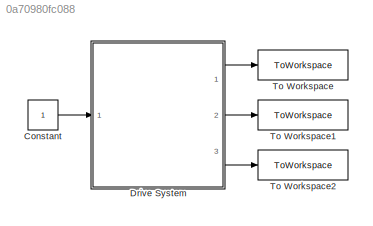
MODEL slx_0a70980fc088
KIND model
CONFIG AbsTol = auto
CONFIG EnableMultiTasking = off
CONFIG FixedStep = auto
CONFIG MaxStep = auto
CONFIG MinStep = auto
CONFIG RelTol = 1e-3
CONFIG SampleTimeConstraint = Unconstrained
CONFIG Solver = VariableStepAuto
CONFIG SolverName = VariableStepAuto
CONFIG StartTime = 0.0
CONFIG StopTime = 10.0
BLOCK [Constant] Constant
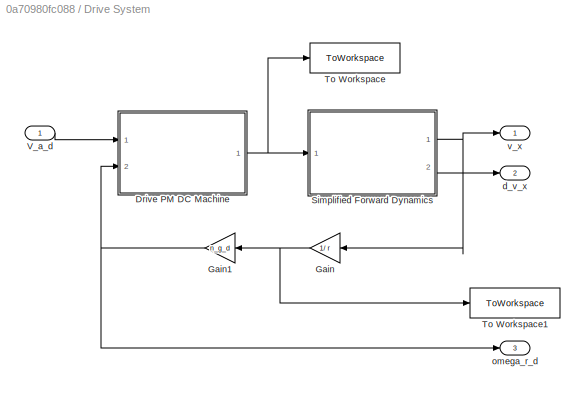
BLOCK [SubSystem] Drive System
  Ports = [1, 3]
  RequestExecContextInheritance = off
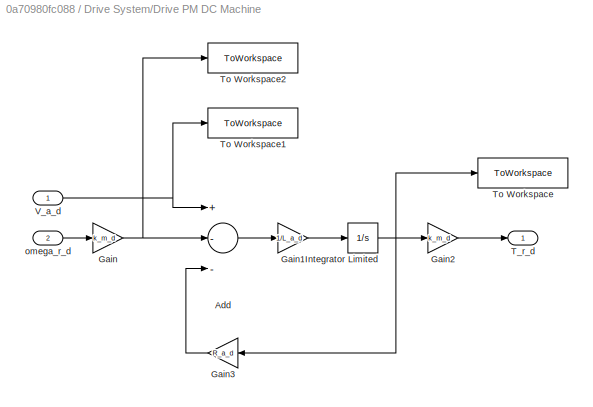
BLOCK [SubSystem] Drive System/Drive PM DC Machine
  Ports = [2, 1]
  RequestExecContextInheritance = off
BLOCK [Sum] Drive System/Drive PM DC Machine/Add
  InputSameDT = off
  Inputs = +--
  OutDataTypeStr = Inherit: Inherit via internal rule
  Ports = [3, 1]
  SaturateOnIntegerOverflow = off
BLOCK [Gain] Drive System/Drive PM DC Machine/Gain
  AttributesFormatString = %<Gain>
  Gain = k_m_d
  OutDataTypeStr = Inherit: Inherit via internal rule
  ParamDataTypeStr = Inherit: Inherit via internal rule
  SaturateOnIntegerOverflow = off
BLOCK [Gain] Drive System/Drive PM DC Machine/Gain1
  AttributesFormatString = %<Gain>
  Gain = 1/L_a_d
  OutDataTypeStr = Inherit: Inherit via internal rule
  ParamDataTypeStr = Inherit: Inherit via internal rule
  SaturateOnIntegerOverflow = off
BLOCK [Gain] Drive System/Drive PM DC Machine/Gain2
  AttributesFormatString = %<Gain>
  Gain = k_m_d
  OutDataTypeStr = Inherit: Inherit via internal rule
  ParamDataTypeStr = Inherit: Inherit via internal rule
  SaturateOnIntegerOverflow = off
BLOCK [Gain] Drive System/Drive PM DC Machine/Gain3
  AttributesFormatString = %<Gain>
  Gain = R_a_d
  OutDataTypeStr = Inherit: Inherit via internal rule
  ParamDataTypeStr = Inherit: Inherit via internal rule
  SaturateOnIntegerOverflow = off
BLOCK [Integrator] Drive System/Drive PM DC Machine/Integrator Limited
  LimitOutput = on
  LowerSaturationLimit = -i_a_max
  Ports = [1, 1]
  UpperSaturationLimit = i_a_max
BLOCK [Outport] Drive System/Drive PM DC Machine/T_r_d
  IconDisplay = Port number
  VectorParamsAs1DForOutWhenUnconnected = off
BLOCK [ToWorkspace] Drive System/Drive PM DC Machine/To Workspace
  FixptAsFi = on
  MaxDataPoints = inf
  Ports = [1]
  SampleTime = -1
  VariableName = i_a_d
BLOCK [ToWorkspace] Drive System/Drive PM DC Machine/To Workspace1
  FixptAsFi = on
  MaxDataPoints = inf
  Ports = [1]
  SampleTime = -1
  VariableName = V_a_d
BLOCK [ToWorkspace] Drive System/Drive PM DC Machine/To Workspace2
  FixptAsFi = on
  MaxDataPoints = inf
  Ports = [1]
  SampleTime = -1
  VariableName = E_a_d
BLOCK [Inport] Drive System/Drive PM DC Machine/V_a_d
  IconDisplay = Port number
BLOCK [Inport] Drive System/Drive PM DC Machine/omega_r_d
  IconDisplay = Port number
  Port = 2
BLOCK [Gain] Drive System/Gain
  AttributesFormatString = %<Gain>
  Gain = 1/ r
  OutDataTypeStr = Inherit: Inherit via internal rule
  ParamDataTypeStr = Inherit: Inherit via internal rule
  SaturateOnIntegerOverflow = off
BLOCK [Gain] Drive System/Gain1
  AttributesFormatString = %<Gain>
  Gain = n_g_d
  OutDataTypeStr = Inherit: Inherit via internal rule
  ParamDataTypeStr = Inherit: Inherit via internal rule
  SaturateOnIntegerOverflow = off
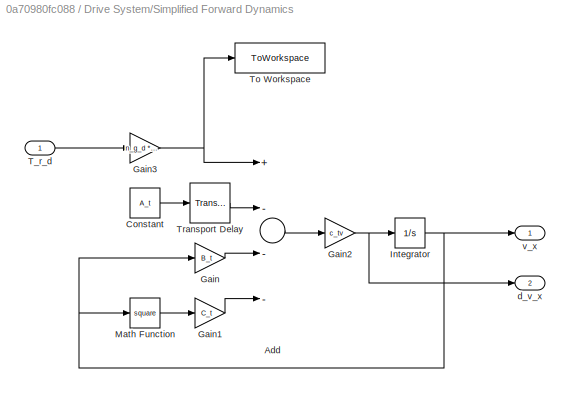
BLOCK [SubSystem] Drive System/Simplified Forward Dynamics
  Ports = [1, 2]
  RequestExecContextInheritance = off
BLOCK [Sum] Drive System/Simplified Forward Dynamics/Add
  InputSameDT = off
  Inputs = +---
  OutDataTypeStr = Inherit: Inherit via internal rule
  Ports = [4, 1]
  SaturateOnIntegerOverflow = off
BLOCK [Constant] Drive System/Simplified Forward Dynamics/Constant
  Value = A_t
BLOCK [Gain] Drive System/Simplified Forward Dynamics/Gain
  Gain = B_t
  OutDataTypeStr = Inherit: Inherit via internal rule
  ParamDataTypeStr = Inherit: Inherit via internal rule
  SaturateOnIntegerOverflow = off
BLOCK [Gain] Drive System/Simplified Forward Dynamics/Gain1
  Gain = C_t
  OutDataTypeStr = Inherit: Inherit via internal rule
  ParamDataTypeStr = Inherit: Inherit via internal rule
  SaturateOnIntegerOverflow = off
BLOCK [Gain] Drive System/Simplified Forward Dynamics/Gain2
  Gain = c_tv
  OutDataTypeStr = Inherit: Inherit via internal rule
  ParamDataTypeStr = Inherit: Inherit via internal rule
  SaturateOnIntegerOverflow = off
BLOCK [Gain] Drive System/Simplified Forward Dynamics/Gain3
  AttributesFormatString = %<Gain>
  Gain = n_g_d * eta_g_d
  OutDataTypeStr = Inherit: Inherit via internal rule
  ParamDataTypeStr = Inherit: Inherit via internal rule
  SaturateOnIntegerOverflow = off
BLOCK [Integrator] Drive System/Simplified Forward Dynamics/Integrator
  Ports = [1, 1]
BLOCK [Math] Drive System/Simplified Forward Dynamics/Math Function
  Operator = square
  Ports = [1, 1]
BLOCK [Inport] Drive System/Simplified Forward Dynamics/T_r_d
  IconDisplay = Port number
BLOCK [ToWorkspace] Drive System/Simplified Forward Dynamics/To Workspace
  FixptAsFi = on
  MaxDataPoints = inf
  Ports = [1]
  SampleTime = -1
  VariableName = T_axle_d
BLOCK [TransportDelay] Drive System/Simplified Forward Dynamics/Transport Delay
  BufferSize = 4096
  DelayTime = delay_theta
  Ports = [1, 1]
BLOCK [Outport] Drive System/Simplified Forward Dynamics/d_v_x
  IconDisplay = Port number
  Port = 2
  VectorParamsAs1DForOutWhenUnconnected = off
BLOCK [Outport] Drive System/Simplified Forward Dynamics/v_x
  IconDisplay = Port number
  VectorParamsAs1DForOutWhenUnconnected = off
BLOCK [ToWorkspace] Drive System/To Workspace
  FixptAsFi = on
  MaxDataPoints = inf
  Ports = [1]
  SampleTime = -1
  VariableName = T_r_d
BLOCK [ToWorkspace] Drive System/To Workspace1
  FixptAsFi = on
  MaxDataPoints = inf
  Ports = [1]
  SampleTime = -1
  VariableName = omega_axle_d
BLOCK [Inport] Drive System/V_a_d
  IconDisplay = Port number
BLOCK [Outport] Drive System/d_v_x
  IconDisplay = Port number
  Port = 2
  VectorParamsAs1DForOutWhenUnconnected = off
BLOCK [Outport] Drive System/omega_r_d
  IconDisplay = Port number
  Port = 3
  VectorParamsAs1DForOutWhenUnconnected = off
BLOCK [Outport] Drive System/v_x
  IconDisplay = Port number
  VectorParamsAs1DForOutWhenUnconnected = off
BLOCK [ToWorkspace] To Workspace
  FixptAsFi = on
  MaxDataPoints = inf
  Ports = [1]
  SampleTime = -1
  SaveFormat = Timeseries
  VariableName = v_x
BLOCK [ToWorkspace] To Workspace1
  FixptAsFi = on
  MaxDataPoints = inf
  Ports = [1]
  SampleTime = -1
  SaveFormat = Timeseries
  VariableName = d_v_x
BLOCK [ToWorkspace] To Workspace2
  FixptAsFi = on
  MaxDataPoints = inf
  Ports = [1]
  SampleTime = -1
  SaveFormat = Timeseries
  VariableName = omega_r_d
LINE Constant:1 -> Drive System:1
LINE Drive System/Drive PM DC Machine/Add:1 -> Drive System/Drive PM DC Machine/Gain1:1
LINE Drive System/Drive PM DC Machine/Gain1:1 -> Drive System/Drive PM DC Machine/Integrator Limited:1
LINE Drive System/Drive PM DC Machine/Gain2:1 -> Drive System/Drive PM DC Machine/T_r_d:1
LINE Drive System/Drive PM DC Machine/Gain3:1 -> Drive System/Drive PM DC Machine/Add:3
NET Drive System/Drive PM DC Machine/Gain:1 -> Drive System/Drive PM DC Machine/Add:2, Drive System/Drive PM DC Machine/To Workspace2:1
NET Drive System/Drive PM DC Machine/Integrator Limited:1 -> Drive System/Drive PM DC Machine/Gain2:1, Drive System/Drive PM DC Machine/Gain3:1, Drive System/Drive PM DC Machine/To Workspace:1
NET Drive System/Drive PM DC Machine/V_a_d:1 -> Drive System/Drive PM DC Machine/Add:1, Drive System/Drive PM DC Machine/To Workspace1:1
LINE Drive System/Drive PM DC Machine/omega_r_d:1 -> Drive System/Drive PM DC Machine/Gain:1
NET Drive System/Drive PM DC Machine:1 -> Drive System/Simplified Forward Dynamics:1, Drive System/To Workspace:1
NET Drive System/Gain1:1 -> Drive System/Drive PM DC Machine:2, Drive System/omega_r_d:1
NET Drive System/Gain:1 -> Drive System/Gain1:1, Drive System/To Workspace1:1
LINE Drive System/Simplified Forward Dynamics/Add:1 -> Drive System/Simplified Forward Dynamics/Gain2:1
LINE Drive System/Simplified Forward Dynamics/Constant:1 -> Drive System/Simplified Forward Dynamics/Transport Delay:1
LINE Drive System/Simplified Forward Dynamics/Gain1:1 -> Drive System/Simplified Forward Dynamics/Add:4
NET Drive System/Simplified Forward Dynamics/Gain2:1 -> Drive System/Simplified Forward Dynamics/Integrator:1, Drive System/Simplified Forward Dynamics/d_v_x:1
NET Drive System/Simplified Forward Dynamics/Gain3:1 -> Drive System/Simplified Forward Dynamics/Add:1, Drive System/Simplified Forward Dynamics/To Workspace:1
LINE Drive System/Simplified Forward Dynamics/Gain:1 -> Drive System/Simplified Forward Dynamics/Add:3
NET Drive System/Simplified Forward Dynamics/Integrator:1 -> Drive System/Simplified Forward Dynamics/Gain:1, Drive System/Simplified Forward Dynamics/Math Function:1, Drive System/Simplified Forward Dynamics/v_x:1
LINE Drive System/Simplified Forward Dynamics/Math Function:1 -> Drive System/Simplified Forward Dynamics/Gain1:1
LINE Drive System/Simplified Forward Dynamics/T_r_d:1 -> Drive System/Simplified Forward Dynamics/Gain3:1
LINE Drive System/Simplified Forward Dynamics/Transport Delay:1 -> Drive System/Simplified Forward Dynamics/Add:2
NET Drive System/Simplified Forward Dynamics:1 -> Drive System/Gain:1, Drive System/v_x:1
LINE Drive System/Simplified Forward Dynamics:2 -> Drive System/d_v_x:1
LINE Drive System/V_a_d:1 -> Drive System/Drive PM DC Machine:1
LINE Drive System:1 -> To Workspace:1
LINE Drive System:2 -> To Workspace1:1
LINE Drive System:3 -> To Workspace2:1
note: NET lines group one-source signal fan-out (src -> all destinations, sorted); 1:1 wires keep LINE
